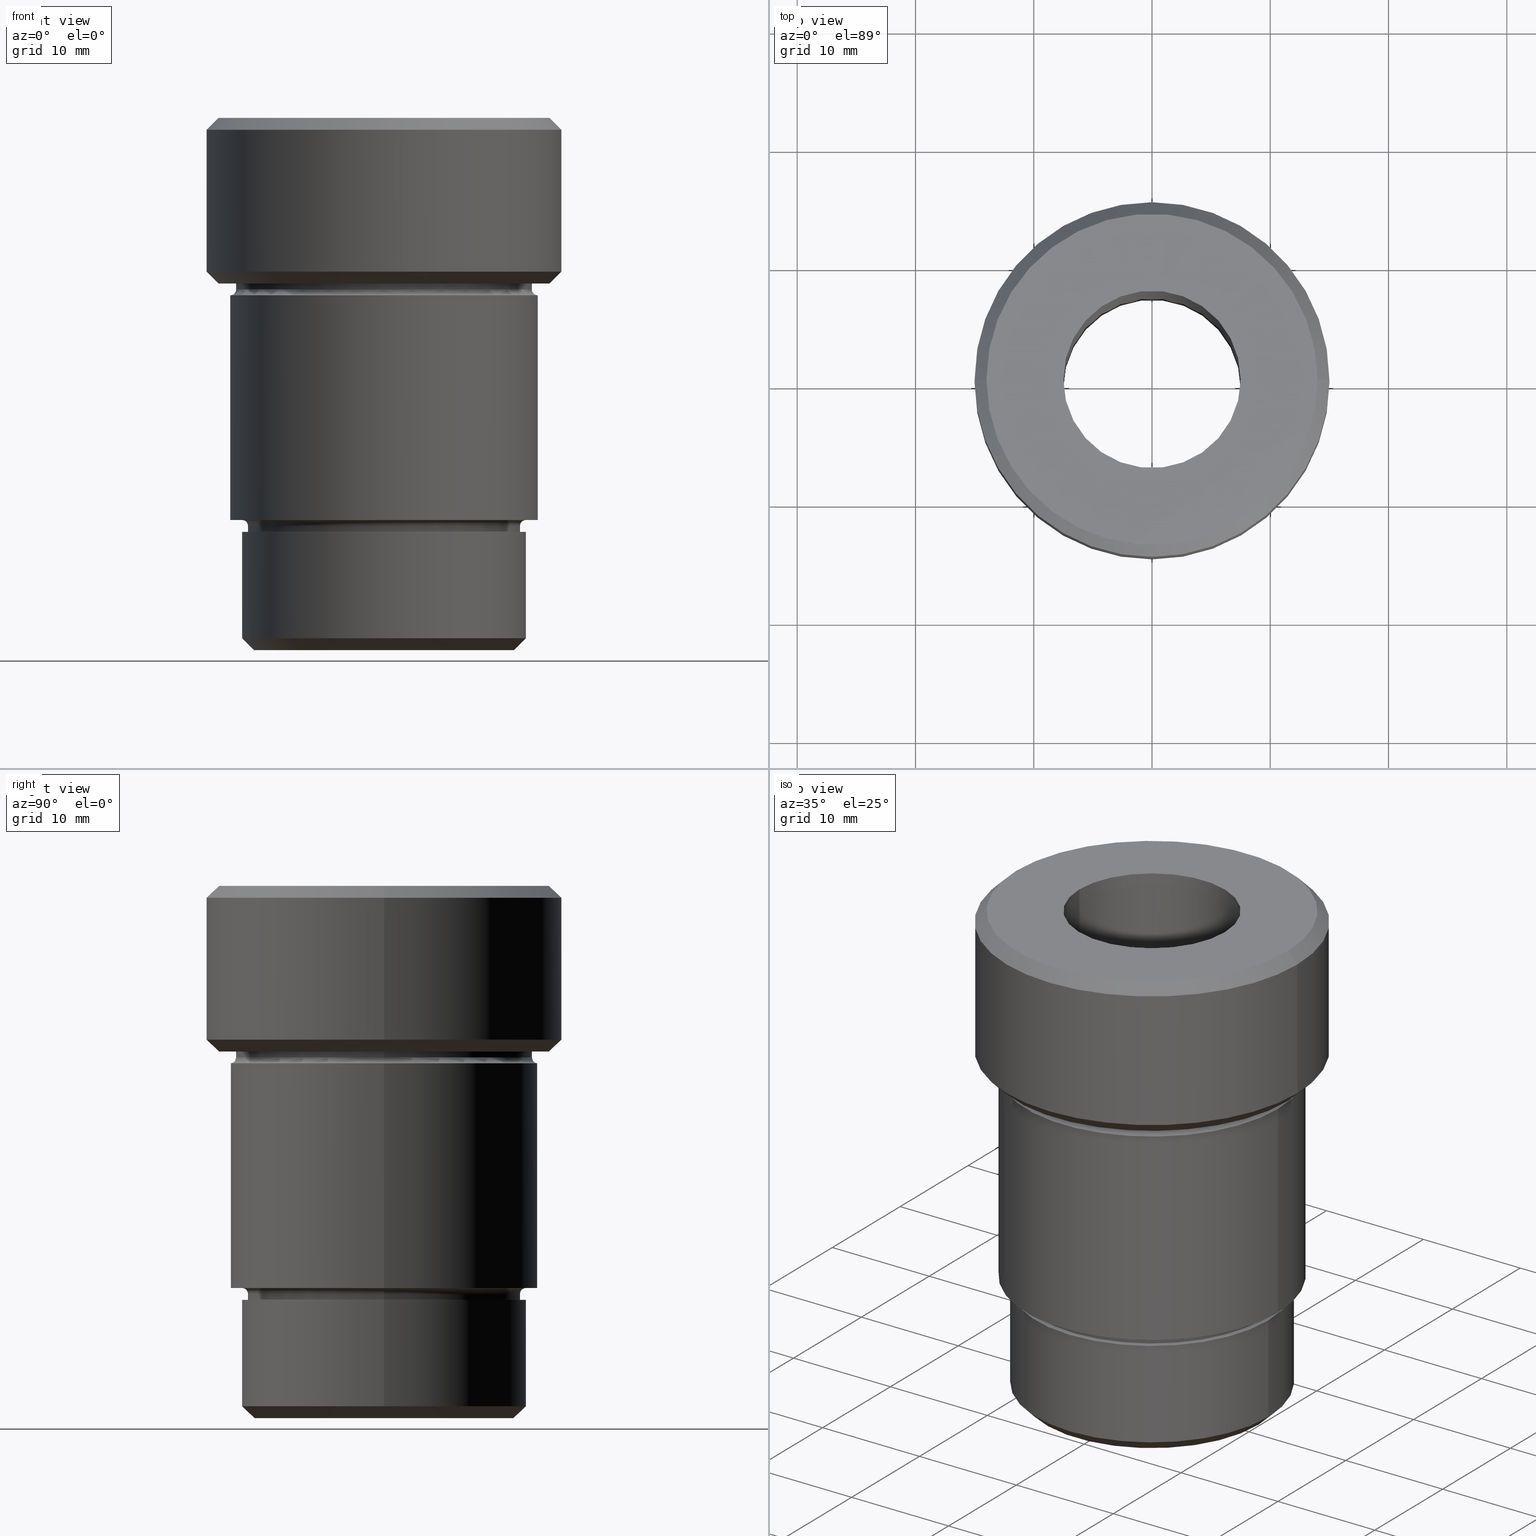
[diagram: canonical four-view strip — front | top / right | iso, engineering-drawing reading convention]
A machine part, canonical four-view strip (front | top / right | iso — engineering-drawing reading convention). The complete STEP part file that produces these views, byte-faithful:
ISO-10303-21;
HEADER;
FILE_DESCRIPTION (( 'STEP AP203' ),
    '1' );
FILE_NAME ('218a.STEP',
    '2024-01-08T12:26:51',
    ( '' ),
    ( '' ),
    'SwSTEP 2.0',
    'SolidWorks 2019',
    '' );
FILE_SCHEMA (( 'CONFIG_CONTROL_DESIGN' ));
ENDSEC;

DATA;
#1 = DIRECTION ( 'NONE',  ( 0.000000000000000000, 0.000000000000000000, -1.000000000000000000 ) ) ;
#2 = EDGE_LOOP ( 'NONE', ( #132, #17 ) ) ;
#3 = DIRECTION ( 'NONE',  ( 1.000000000000000000, 0.000000000000000000, 0.000000000000000000 ) ) ;
#4 = ORIENTED_EDGE ( 'NONE', *, *, #757, .T. ) ;
#5 = DIRECTION ( 'NONE',  ( -0.000000000000000000, -0.000000000000000000, 1.000000000000000000 ) ) ;
#6 = DIRECTION ( 'NONE',  ( -1.000000000000000000, 0.000000000000000000, -0.000000000000000000 ) ) ;
#7 = VERTEX_POINT ( 'NONE', #175 ) ;
#8 = VECTOR ( 'NONE', #476, 999.9999999999998863 ) ;
#9 = AXIS2_PLACEMENT_3D ( 'NONE', #474, #177, #114 ) ;
#10 = DIRECTION ( 'NONE',  ( -0.000000000000000000, -0.000000000000000000, 1.000000000000000000 ) ) ;
#11 = EDGE_LOOP ( 'NONE', ( #198, #740, #411, #762 ) ) ;
#12 = EDGE_CURVE ( 'NONE', #225, #246, #251, .T. ) ;
#13 = DIRECTION ( 'NONE',  ( -0.000000000000000000, -0.000000000000000000, 1.000000000000000000 ) ) ;
#14 = CC_DESIGN_PERSON_AND_ORGANIZATION_ASSIGNMENT ( #457, #38, ( #397 ) ) ;
#15 = DIRECTION ( 'NONE',  ( -0.000000000000000000, -0.000000000000000000, 1.000000000000000000 ) ) ;
#16 = EDGE_LOOP ( 'NONE', ( #212, #266, #244, #364 ) ) ;
#17 = ORIENTED_EDGE ( 'NONE', *, *, #789, .T. ) ;
#18 = VERTEX_POINT ( 'NONE', #583 ) ;
#19 = CARTESIAN_POINT ( 'NONE',  ( -12.00000000000000000, 1.469576158976823947E-15, -44.00000000000000711 ) ) ;
#20 = AXIS2_PLACEMENT_3D ( 'NONE', #78, #513, #751 ) ;
#21 = AXIS2_PLACEMENT_3D ( 'NONE', #176, #586, #405 ) ;
#22 = SHAPE_DEFINITION_REPRESENTATION ( #628, #191 ) ;
#23 = EDGE_CURVE ( 'NONE', #246, #225, #57, .T. ) ;
#24 = AXIS2_PLACEMENT_3D ( 'NONE', #360, #233, #788 ) ;
#25 = DIRECTION ( 'NONE',  ( -0.000000000000000000, -0.000000000000000000, 1.000000000000000000 ) ) ;
#26 = PLANE ( 'NONE',  #315 ) ;
#27 = AXIS2_PLACEMENT_3D ( 'NONE', #655, #168, #707 ) ;
#28 = ORIENTED_EDGE ( 'NONE', *, *, #12, .F. ) ;
#29 = PERSON_AND_ORGANIZATION ( #646, #702 ) ;
#30 = APPLICATION_CONTEXT ( 'configuration controlled 3d designs of mechanical parts and assemblies' ) ;
#31 = DIRECTION ( 'NONE',  ( -1.000000000000000000, 0.000000000000000000, -0.000000000000000000 ) ) ;
#32 = CIRCLE ( 'NONE', #539, 13.99999999999999822 ) ;
#33 = PERSON_AND_ORGANIZATION ( #646, #702 ) ;
#34 = CARTESIAN_POINT ( 'NONE',  ( 0.000000000000000000, 0.000000000000000000, -14.49999999999999822 ) ) ;
#35 = ORIENTED_EDGE ( 'NONE', *, *, #107, .T. ) ;
#36 = CC_DESIGN_SECURITY_CLASSIFICATION ( #607, ( #623 ) ) ;
#37 = ADVANCED_FACE ( 'NONE', ( #644, #162 ), #392, .T. ) ;
#38 = PERSON_AND_ORGANIZATION_ROLE ( 'creator' ) ;
#39 = EDGE_CURVE ( 'NONE', #562, #170, #419, .T. ) ;
#40 = CARTESIAN_POINT ( 'NONE',  ( 0.000000000000000000, 0.000000000000000000, -44.00000000000000711 ) ) ;
#41 = DIRECTION ( 'NONE',  ( -1.000000000000000000, 0.000000000000000000, 0.000000000000000000 ) ) ;
#42 = ORIENTED_EDGE ( 'NONE', *, *, #308, .F. ) ;
#43 = LINE ( 'NONE', #286, #166 ) ;
#44 = CIRCLE ( 'NONE', #493, 12.50000000000000000 ) ;
#45 = CARTESIAN_POINT ( 'NONE',  ( 0.000000000000000000, 0.000000000000000000, 0.000000000000000000 ) ) ;
#46 = EDGE_CURVE ( 'NONE', #566, #102, #343, .T. ) ;
#47 = LINE ( 'NONE', #409, #727 ) ;
#48 = APPROVAL_PERSON_ORGANIZATION ( #29, #485, #147 ) ;
#49 = LINE ( 'NONE', #645, #385 ) ;
#50 = DIRECTION ( 'NONE',  ( 0.000000000000000000, 0.000000000000000000, -1.000000000000000000 ) ) ;
#51 = DIRECTION ( 'NONE',  ( -0.000000000000000000, -0.000000000000000000, 1.000000000000000000 ) ) ;
#52 = DIRECTION ( 'NONE',  ( 1.000000000000000000, 0.000000000000000000, 0.000000000000000000 ) ) ;
#53 = EDGE_CURVE ( 'NONE', #766, #548, #242, .T. ) ;
#54 = CARTESIAN_POINT ( 'NONE',  ( 0.000000000000000000, 0.000000000000000000, -44.00000000000000711 ) ) ;
#55 = AXIS2_PLACEMENT_3D ( 'NONE', #311, #1, #6 ) ;
#56 = DIRECTION ( 'NONE',  ( 1.000000000000000000, 0.000000000000000000, 0.000000000000000000 ) ) ;
#57 = CIRCLE ( 'NONE', #602, 13.99999999999999112 ) ;
#58 = VECTOR ( 'NONE', #10, 1000.000000000000000 ) ;
#59 = DIRECTION ( 'NONE',  ( 1.000000000000000000, 0.000000000000000000, 0.000000000000000000 ) ) ;
#60 = FACE_OUTER_BOUND ( 'NONE', #666, .T. ) ;
#61 = CARTESIAN_POINT ( 'NONE',  ( 0.000000000000000000, 0.000000000000000000, -34.50000000000000000 ) ) ;
#62 = CYLINDRICAL_SURFACE ( 'NONE', #670, 11.50000000000000355 ) ;
#63 = DIRECTION ( 'NONE',  ( -0.000000000000000000, -0.000000000000000000, 1.000000000000000000 ) ) ;
#64 = VERTEX_POINT ( 'NONE', #432 ) ;
#65 = DIRECTION ( 'NONE',  ( -1.000000000000000000, 0.000000000000000000, 0.000000000000000000 ) ) ;
#66 = DIRECTION ( 'NONE',  ( 1.000000000000000000, 0.000000000000000000, 0.000000000000000000 ) ) ;
#67 = CIRCLE ( 'NONE', #293, 0.5000000000000004441 ) ;
#68 = VERTEX_POINT ( 'NONE', #571 ) ;
#69 = ADVANCED_FACE ( 'NONE', ( #263 ), #510, .T. ) ;
#70 = VERTEX_POINT ( 'NONE', #146 ) ;
#71 = DIRECTION ( 'NONE',  ( -1.000000000000000000, 0.000000000000000000, 0.000000000000000000 ) ) ;
#72 = DIRECTION ( 'NONE',  ( -0.000000000000000000, -0.000000000000000000, 1.000000000000000000 ) ) ;
#73 = EDGE_LOOP ( 'NONE', ( #371, #724, #96, #551 ) ) ;
#74 = ORIENTED_EDGE ( 'NONE', *, *, #274, .F. ) ;
#75 = CIRCLE ( 'NONE', #109, 11.50000000000000178 ) ;
#76 = ORIENTED_EDGE ( 'NONE', *, *, #289, .T. ) ;
#77 = ADVANCED_FACE ( 'NONE', ( #440, #327 ), #743, .T. ) ;
#78 = CARTESIAN_POINT ( 'NONE',  ( 0.000000000000000000, 0.000000000000000000, -45.00000000000000000 ) ) ;
#79 = PERSON_AND_ORGANIZATION_ROLE ( 'classification_officer' ) ;
#80 = CIRCLE ( 'NONE', #449, 0.5000000000000004441 ) ;
#81 = AXIS2_PLACEMENT_3D ( 'NONE', #310, #552, #65 ) ;
#82 = CARTESIAN_POINT ( 'NONE',  ( 14.99999999999999822, 0.000000000000000000, -13.00000000000001066 ) ) ;
#83 = DATE_AND_TIME ( #462, #641 ) ;
#84 = ADVANCED_FACE ( 'NONE', ( #379 ), #748, .F. ) ;
#85 = DIRECTION ( 'NONE',  ( 1.000000000000000000, 0.000000000000000000, 0.000000000000000000 ) ) ;
#86 = CIRCLE ( 'NONE', #258, 12.00000000000000178 ) ;
#87 = APPROVAL_STATUS ( 'not_yet_approved' ) ;
#88 = CARTESIAN_POINT ( 'NONE',  ( 0.000000000000000000, 0.000000000000000000, -14.00000000000000000 ) ) ;
#89 = COORDINATED_UNIVERSAL_TIME_OFFSET ( 1, 0, .AHEAD. ) ;
#90 = CARTESIAN_POINT ( 'NONE',  ( 0.000000000000000000, 0.000000000000000000, 0.000000000000000000 ) ) ;
#91 = FACE_OUTER_BOUND ( 'NONE', #465, .T. ) ;
#92 = EDGE_CURVE ( 'NONE', #225, #260, #444, .T. ) ;
#93 = EDGE_LOOP ( 'NONE', ( #126, #675, #497, #309 ) ) ;
#94 = AXIS2_PLACEMENT_3D ( 'NONE', #685, #461, #211 ) ;
#95 = ORIENTED_EDGE ( 'NONE', *, *, #395, .F. ) ;
#96 = ORIENTED_EDGE ( 'NONE', *, *, #723, .T. ) ;
#97 = DIRECTION ( 'NONE',  ( -1.000000000000000000, -1.224646799147353454E-16, 0.000000000000000000 ) ) ;
#98 = ORIENTED_EDGE ( 'NONE', *, *, #381, .F. ) ;
#99 = CIRCLE ( 'NONE', #325, 14.99999999999999822 ) ;
#100 = FACE_BOUND ( 'NONE', #671, .T. ) ;
#101 = DIRECTION ( 'NONE',  ( 1.000000000000000000, 0.000000000000000000, 0.000000000000000000 ) ) ;
#102 = VERTEX_POINT ( 'NONE', #82 ) ;
#103 = EDGE_CURVE ( 'NONE', #68, #562, #323, .T. ) ;
#104 = CARTESIAN_POINT ( 'NONE',  ( 12.00000000000000000, 0.000000000000000000, 0.000000000000000000 ) ) ;
#105 = TOROIDAL_SURFACE ( 'NONE', #214, 13.00000000000000178, 0.5000000000000000000 ) ;
#106 = CIRCLE ( 'NONE', #9, 13.00000000000000355 ) ;
#107 = EDGE_CURVE ( 'NONE', #507, #447, #121, .T. ) ;
#108 = DIRECTION ( 'NONE',  ( 0.000000000000000000, 0.000000000000000000, -1.000000000000000000 ) ) ;
#109 = AXIS2_PLACEMENT_3D ( 'NONE', #297, #533, #657 ) ;
#110 = DIRECTION ( 'NONE',  ( 0.000000000000000000, 0.000000000000000000, -1.000000000000000000 ) ) ;
#111 = CARTESIAN_POINT ( 'NONE',  ( 0.000000000000000000, 0.000000000000000000, -13.00000000000001066 ) ) ;
#112 = CONICAL_SURFACE ( 'NONE', #768, 14.99999999999999822, 0.7853981633974526089 ) ;
#113 = AXIS2_PLACEMENT_3D ( 'NONE', #45, #782, #178 ) ;
#114 = DIRECTION ( 'NONE',  ( 1.000000000000000000, 0.000000000000000000, 0.000000000000000000 ) ) ;
#115 = CARTESIAN_POINT ( 'NONE',  ( 0.000000000000000000, 0.000000000000000000, -15.00000000000000000 ) ) ;
#116 = CARTESIAN_POINT ( 'NONE',  ( 0.000000000000000000, 0.000000000000000000, 0.000000000000000000 ) ) ;
#117 = ORIENTED_EDGE ( 'NONE', *, *, #523, .F. ) ;
#118 = CARTESIAN_POINT ( 'NONE',  ( 0.000000000000000000, 0.000000000000000000, -45.00000000000000000 ) ) ;
#119 = CC_DESIGN_PERSON_AND_ORGANIZATION_ASSIGNMENT ( #213, #284, ( #623 ) ) ;
#120 = LINE ( 'NONE', #232, #279 ) ;
#121 = CIRCLE ( 'NONE', #569, 11.50000000000000355 ) ;
#122 = CIRCLE ( 'NONE', #784, 11.50000000000000355 ) ;
#123 = VERTEX_POINT ( 'NONE', #770 ) ;
#124 = DIRECTION ( 'NONE',  ( 0.000000000000000000, 0.000000000000000000, -1.000000000000000000 ) ) ;
#125 = EDGE_LOOP ( 'NONE', ( #98, #354, #76, #35 ) ) ;
#126 = ORIENTED_EDGE ( 'NONE', *, *, #256, .T. ) ;
#127 = CARTESIAN_POINT ( 'NONE',  ( 12.00000000000000178, 0.000000000000000000, -35.00000000000000000 ) ) ;
#128 = CARTESIAN_POINT ( 'NONE',  ( 0.000000000000000000, 0.000000000000000000, 0.000000000000000000 ) ) ;
#129 = LOCAL_TIME ( 13, 26, 51.00000000000000000, #89 ) ;
#130 = ORIENTED_EDGE ( 'NONE', *, *, #289, .F. ) ;
#131 = DIRECTION ( 'NONE',  ( 0.000000000000000000, 0.000000000000000000, 1.000000000000000000 ) ) ;
#132 = ORIENTED_EDGE ( 'NONE', *, *, #193, .T. ) ;
#133 = AXIS2_PLACEMENT_3D ( 'NONE', #722, #131, #3 ) ;
#134 = ORIENTED_EDGE ( 'NONE', *, *, #324, .F. ) ;
#135 = LINE ( 'NONE', #352, #696 ) ;
#136 = DIRECTION ( 'NONE',  ( 1.000000000000000000, 0.000000000000000000, 0.000000000000000000 ) ) ;
#137 = CIRCLE ( 'NONE', #515, 0.5000000000000004441 ) ;
#138 = ADVANCED_FACE ( 'NONE', ( #453, #100 ), #157, .T. ) ;
#139 = AXIS2_PLACEMENT_3D ( 'NONE', #705, #614, #59 ) ;
#140 = ORIENTED_EDGE ( 'NONE', *, *, #236, .T. ) ;
#141 = FACE_OUTER_BOUND ( 'NONE', #556, .T. ) ;
#142 = CIRCLE ( 'NONE', #626, 12.50000000000000000 ) ;
#143 = DIRECTION ( 'NONE',  ( 1.000000000000000000, 0.000000000000000000, 0.000000000000000000 ) ) ;
#144 = AXIS2_PLACEMENT_3D ( 'NONE', #61, #553, #734 ) ;
#145 = ADVANCED_FACE ( 'NONE', ( #331 ), #729, .T. ) ;
#146 = CARTESIAN_POINT ( 'NONE',  ( -13.99999999999999822, 1.775737858763662015E-15, -14.00000000000000000 ) ) ;
#147 = APPROVAL_ROLE ( '' ) ;
#148 = ORIENTED_EDGE ( 'NONE', *, *, #789, .F. ) ;
#149 = ORIENTED_EDGE ( 'NONE', *, *, #632, .T. ) ;
#150 = CC_DESIGN_PERSON_AND_ORGANIZATION_ASSIGNMENT ( #690, #390, ( #559 ) ) ;
#151 = DIRECTION ( 'NONE',  ( 0.000000000000000000, 0.000000000000000000, -1.000000000000000000 ) ) ;
#152 = AXIS2_PLACEMENT_3D ( 'NONE', #156, #564, #85 ) ;
#153 = ORIENTED_EDGE ( 'NONE', *, *, #218, .T. ) ;
#154 = CIRCLE ( 'NONE', #755, 0.5000000000000004441 ) ;
#155 = CALENDAR_DATE ( 2024, 8, 1 ) ;
#156 = CARTESIAN_POINT ( 'NONE',  ( 0.000000000000000000, 0.000000000000000000, -1.000000000000004441 ) ) ;
#157 = PLANE ( 'NONE',  #228 ) ;
#158 = PERSON_AND_ORGANIZATION ( #646, #702 ) ;
#159 = EDGE_CURVE ( 'NONE', #246, #736, #362, .T. ) ;
#160 = DIRECTION ( 'NONE',  ( 0.000000000000000000, 0.000000000000000000, -1.000000000000000000 ) ) ;
#161 = ORIENTED_EDGE ( 'NONE', *, *, #181, .F. ) ;
#162 = FACE_OUTER_BOUND ( 'NONE', #544, .T. ) ;
#163 = ORIENTED_EDGE ( 'NONE', *, *, #269, .T. ) ;
#164 = DIRECTION ( 'NONE',  ( 1.000000000000000000, 0.000000000000000000, 0.000000000000000000 ) ) ;
#165 = EDGE_LOOP ( 'NONE', ( #613, #192, #255, #753 ) ) ;
#166 = VECTOR ( 'NONE', #290, 1000.000000000000000 ) ;
#167 = AXIS2_PLACEMENT_3D ( 'NONE', #111, #786, #52 ) ;
#168 = DIRECTION ( 'NONE',  ( -0.000000000000000000, -0.000000000000000000, 1.000000000000000000 ) ) ;
#169 = EDGE_CURVE ( 'NONE', #447, #185, #80, .T. ) ;
#170 = VERTEX_POINT ( 'NONE', #303 ) ;
#171 = CARTESIAN_POINT ( 'NONE',  ( -12.50000000000000000, 1.530808498934191521E-15, -14.49999999999999822 ) ) ;
#172 = ADVANCED_FACE ( 'NONE', ( #546 ), #105, .F. ) ;
#173 = CYLINDRICAL_SURFACE ( 'NONE', #24, 12.00000000000000000 ) ;
#174 = CIRCLE ( 'NONE', #604, 12.50000000000000000 ) ;
#175 = CARTESIAN_POINT ( 'NONE',  ( -11.50000000000000178, 1.408343819019456373E-15, -35.00000000000000000 ) ) ;
#176 = CARTESIAN_POINT ( 'NONE',  ( 0.000000000000000000, 0.000000000000000000, -35.00000000000000000 ) ) ;
#177 = DIRECTION ( 'NONE',  ( -0.000000000000000000, -0.000000000000000000, 1.000000000000000000 ) ) ;
#178 = DIRECTION ( 'NONE',  ( 1.000000000000000000, 0.000000000000000000, 0.000000000000000000 ) ) ;
#179 = EDGE_CURVE ( 'NONE', #70, #329, #648, .T. ) ;
#180 = DIRECTION ( 'NONE',  ( 1.000000000000000000, 0.000000000000000000, 0.000000000000000000 ) ) ;
#181 = EDGE_CURVE ( 'NONE', #292, #123, #120, .T. ) ;
#182 = CARTESIAN_POINT ( 'NONE',  ( 13.99999999999999112, 1.775737858763661226E-15, 0.000000000000000000 ) ) ;
#183 = ORIENTED_EDGE ( 'NONE', *, *, #541, .T. ) ;
#184 = CYLINDRICAL_SURFACE ( 'NONE', #113, 12.00000000000000000 ) ;
#185 = VERTEX_POINT ( 'NONE', #368 ) ;
#186 = EDGE_LOOP ( 'NONE', ( #370, #706, #436, #117 ) ) ;
#187 = DIRECTION ( 'NONE',  ( 0.000000000000000000, 0.000000000000000000, -1.000000000000000000 ) ) ;
#188 = AXIS2_PLACEMENT_3D ( 'NONE', #759, #391, #695 ) ;
#189 = ORIENTED_EDGE ( 'NONE', *, *, #46, .T. ) ;
#190 = FACE_OUTER_BOUND ( 'NONE', #337, .T. ) ;
#191 = ADVANCED_BREP_SHAPE_REPRESENTATION ( '218a', ( #682, #295 ), #749 ) ;
#192 = ORIENTED_EDGE ( 'NONE', *, *, #433, .T. ) ;
#193 = EDGE_CURVE ( 'NONE', #288, #548, #558, .T. ) ;
#194 = ORIENTED_EDGE ( 'NONE', *, *, #308, .T. ) ;
#195 = CARTESIAN_POINT ( 'NONE',  ( -12.00000000000000355, 0.000000000000000000, -34.50000000000000000 ) ) ;
#196 = DIRECTION ( 'NONE',  ( -1.000000000000000000, 0.000000000000000000, 0.000000000000000000 ) ) ;
#197 = CC_DESIGN_APPROVAL ( #599, ( #397 ) ) ;
#198 = ORIENTED_EDGE ( 'NONE', *, *, #23, .F. ) ;
#199 = ORIENTED_EDGE ( 'NONE', *, *, #458, .T. ) ;
#200 = CARTESIAN_POINT ( 'NONE',  ( 0.000000000000000000, 13.00000000000000355, -34.00000000000000000 ) ) ;
#201 = TOROIDAL_SURFACE ( 'NONE', #401, 12.00000000000000355, 0.5000000000000000000 ) ;
#202 = ORIENTED_EDGE ( 'NONE', *, *, #435, .T. ) ;
#203 = EDGE_LOOP ( 'NONE', ( #526, #621 ) ) ;
#204 = ORIENTED_EDGE ( 'NONE', *, *, #458, .F. ) ;
#205 = ADVANCED_FACE ( 'NONE', ( #659 ), #253, .T. ) ;
#206 = CONICAL_SURFACE ( 'NONE', #167, 14.99999999999999822, 0.7853981633974526089 ) ;
#207 = ORIENTED_EDGE ( 'NONE', *, *, #612, .F. ) ;
#208 = LINE ( 'NONE', #509, #424 ) ;
#209 = APPROVAL ( #87, 'NEUR�EN�' ) ;
#210 = CALENDAR_DATE ( 2024, 8, 1 ) ;
#211 = DIRECTION ( 'NONE',  ( 1.000000000000000000, 0.000000000000000000, 0.000000000000000000 ) ) ;
#212 = ORIENTED_EDGE ( 'NONE', *, *, #567, .F. ) ;
#213 = PERSON_AND_ORGANIZATION ( #646, #702 ) ;
#214 = AXIS2_PLACEMENT_3D ( 'NONE', #494, #488, #793 ) ;
#215 = FACE_BOUND ( 'NONE', #624, .T. ) ;
#216 = CIRCLE ( 'NONE', #81, 12.00000000000000355 ) ;
#217 = EDGE_CURVE ( 'NONE', #292, #750, #106, .T. ) ;
#218 = EDGE_CURVE ( 'NONE', #750, #674, #536, .T. ) ;
#219 = PLANE ( 'NONE',  #687 ) ;
#220 = EDGE_LOOP ( 'NONE', ( #249, #285 ) ) ;
#221 = COORDINATED_UNIVERSAL_TIME_OFFSET ( 1, 0, .AHEAD. ) ;
#222 = ORIENTED_EDGE ( 'NONE', *, *, #39, .T. ) ;
#223 = CARTESIAN_POINT ( 'NONE',  ( 13.99999999999999822, 0.000000000000000000, -14.00000000000000000 ) ) ;
#224 = DATE_AND_TIME ( #692, #441 ) ;
#225 = VERTEX_POINT ( 'NONE', #426 ) ;
#226 = EDGE_CURVE ( 'NONE', #774, #766, #270, .T. ) ;
#227 = CYLINDRICAL_SURFACE ( 'NONE', #576, 12.50000000000000000 ) ;
#228 = AXIS2_PLACEMENT_3D ( 'NONE', #287, #701, #590 ) ;
#229 = AXIS2_PLACEMENT_3D ( 'NONE', #318, #160, #71 ) ;
#230 = CARTESIAN_POINT ( 'NONE',  ( 7.500000000000000000, 0.000000000000000000, 0.000000000000000000 ) ) ;
#231 = CARTESIAN_POINT ( 'NONE',  ( 11.50000000000000178, 0.000000000000000000, -35.00000000000000000 ) ) ;
#232 = CARTESIAN_POINT ( 'NONE',  ( -13.00000000000000178, 1.592040838891559293E-15, 0.000000000000000000 ) ) ;
#233 = DIRECTION ( 'NONE',  ( -0.000000000000000000, -0.000000000000000000, 1.000000000000000000 ) ) ;
#234 = DIRECTION ( 'NONE',  ( -0.000000000000000000, -0.000000000000000000, 1.000000000000000000 ) ) ;
#235 = CARTESIAN_POINT ( 'NONE',  ( -14.99999999999999822, 1.836970198721029589E-15, -1.000000000000004441 ) ) ;
#236 = EDGE_CURVE ( 'NONE', #463, #766, #245, .T. ) ;
#237 = CONICAL_SURFACE ( 'NONE', #649, 13.99999999999999112, 0.7853981633974491672 ) ;
#238 = CC_DESIGN_DATE_AND_TIME_ASSIGNMENT ( #83, #572, ( #607 ) ) ;
#239 = CARTESIAN_POINT ( 'NONE',  ( -12.00000000000000355, 1.469576158976824342E-15, -35.00000000000000000 ) ) ;
#240 = TOROIDAL_SURFACE ( 'NONE', #144, 12.00000000000000355, 0.5000000000000000000 ) ;
#241 = DIRECTION ( 'NONE',  ( -1.000000000000000000, 0.000000000000000000, 0.000000000000000000 ) ) ;
#242 = LINE ( 'NONE', #735, #769 ) ;
#243 = DIRECTION ( 'NONE',  ( 1.000000000000000000, 0.000000000000000000, 0.000000000000000000 ) ) ;
#244 = ORIENTED_EDGE ( 'NONE', *, *, #640, .T. ) ;
#245 = LINE ( 'NONE', #652, #592 ) ;
#246 = VERTEX_POINT ( 'NONE', #182 ) ;
#247 = DIRECTION ( 'NONE',  ( -1.000000000000000000, 0.000000000000000000, 0.000000000000000000 ) ) ;
#248 = ORIENTED_EDGE ( 'NONE', *, *, #532, .T. ) ;
#249 = ORIENTED_EDGE ( 'NONE', *, *, #654, .T. ) ;
#250 = DIRECTION ( 'NONE',  ( -1.000000000000000000, 0.000000000000000000, 0.000000000000000000 ) ) ;
#251 = CIRCLE ( 'NONE', #783, 13.99999999999999112 ) ;
#252 = CARTESIAN_POINT ( 'NONE',  ( 0.000000000000000000, 0.000000000000000000, -13.00000000000001066 ) ) ;
#253 = CONICAL_SURFACE ( 'NONE', #450, 13.99999999999999112, 0.7853981633974491672 ) ;
#254 = ORIENTED_EDGE ( 'NONE', *, *, #357, .F. ) ;
#255 = ORIENTED_EDGE ( 'NONE', *, *, #757, .F. ) ;
#256 = EDGE_CURVE ( 'NONE', #750, #292, #304, .T. ) ;
#257 = CARTESIAN_POINT ( 'NONE',  ( -14.99999999999999822, 1.836970198721029589E-15, -13.00000000000001066 ) ) ;
#258 = AXIS2_PLACEMENT_3D ( 'NONE', #442, #683, #66 ) ;
#259 = ORIENTED_EDGE ( 'NONE', *, *, #299, .F. ) ;
#260 = VERTEX_POINT ( 'NONE', #235 ) ;
#261 = FACE_OUTER_BOUND ( 'NONE', #125, .T. ) ;
#262 = DIRECTION ( 'NONE',  ( 1.000000000000000000, 0.000000000000000000, 0.000000000000000000 ) ) ;
#263 = FACE_OUTER_BOUND ( 'NONE', #501, .T. ) ;
#264 = DESIGN_CONTEXT ( 'detailed design', #30, 'design' ) ;
#265 = ORIENTED_EDGE ( 'NONE', *, *, #612, .T. ) ;
#266 = ORIENTED_EDGE ( 'NONE', *, *, #532, .F. ) ;
#267 = FACE_OUTER_BOUND ( 'NONE', #415, .T. ) ;
#268 = DIRECTION ( 'NONE',  ( 0.000000000000000000, -0.000000000000000000, 1.000000000000000000 ) ) ;
#269 = EDGE_CURVE ( 'NONE', #447, #507, #122, .T. ) ;
#270 = CIRCLE ( 'NONE', #570, 12.00000000000000000 ) ;
#271 = CARTESIAN_POINT ( 'NONE',  ( 0.000000000000000000, 0.000000000000000000, 0.000000000000000000 ) ) ;
#272 = AXIS2_PLACEMENT_3D ( 'NONE', #319, #72, #262 ) ;
#273 = DIRECTION ( 'NONE',  ( -1.000000000000000000, 0.000000000000000000, -0.000000000000000000 ) ) ;
#274 = EDGE_CURVE ( 'NONE', #566, #260, #668, .T. ) ;
#275 = ORIENTED_EDGE ( 'NONE', *, *, #226, .F. ) ;
#276 = DATE_AND_TIME ( #328, #377 ) ;
#277 = AXIS2_PLACEMENT_3D ( 'NONE', #712, #412, #767 ) ;
#278 = DIRECTION ( 'NONE',  ( 0.000000000000000000, 0.000000000000000000, -1.000000000000000000 ) ) ;
#279 = VECTOR ( 'NONE', #481, 1000.000000000000000 ) ;
#280 = PERSON_AND_ORGANIZATION ( #646, #702 ) ;
#281 = AXIS2_PLACEMENT_3D ( 'NONE', #115, #773, #596 ) ;
#282 = CYLINDRICAL_SURFACE ( 'NONE', #94, 11.50000000000000355 ) ;
#283 = ADVANCED_FACE ( 'NONE', ( #60 ), #656, .F. ) ;
#284 = PERSON_AND_ORGANIZATION_ROLE ( 'creator' ) ;
#285 = ORIENTED_EDGE ( 'NONE', *, *, #680, .T. ) ;
#286 = CARTESIAN_POINT ( 'NONE',  ( -12.50000000000000000, 1.530808498934191521E-15, 0.000000000000000000 ) ) ;
#287 = CARTESIAN_POINT ( 'NONE',  ( 0.000000000000000000, 11.50000000000000178, -35.00000000000000000 ) ) ;
#288 = VERTEX_POINT ( 'NONE', #127 ) ;
#289 = EDGE_CURVE ( 'NONE', #486, #507, #135, .T. ) ;
#290 = DIRECTION ( 'NONE',  ( -0.000000000000000000, -0.000000000000000000, 1.000000000000000000 ) ) ;
#291 = AXIS2_PLACEMENT_3D ( 'NONE', #271, #268, #143 ) ;
#292 = VERTEX_POINT ( 'NONE', #616 ) ;
#293 = AXIS2_PLACEMENT_3D ( 'NONE', #629, #389, #97 ) ;
#294 = CARTESIAN_POINT ( 'NONE',  ( 0.000000000000000000, 0.000000000000000000, -45.00000000000000000 ) ) ;
#295 = AXIS2_PLACEMENT_3D ( 'NONE', #128, #363, #669 ) ;
#296 = CC_DESIGN_APPROVAL ( #209, ( #623 ) ) ;
#297 = CARTESIAN_POINT ( 'NONE',  ( 0.000000000000000000, 0.000000000000000000, -35.00000000000000000 ) ) ;
#298 = DIRECTION ( 'NONE',  ( 1.000000000000000000, 0.000000000000000000, 0.000000000000000000 ) ) ;
#299 = EDGE_CURVE ( 'NONE', #64, #185, #216, .T. ) ;
#300 = DIRECTION ( 'NONE',  ( -0.000000000000000000, -0.000000000000000000, 1.000000000000000000 ) ) ;
#301 = LINE ( 'NONE', #477, #543 ) ;
#302 = DIRECTION ( 'NONE',  ( -1.000000000000000000, 1.224646799147353454E-16, 0.000000000000000000 ) ) ;
#303 = CARTESIAN_POINT ( 'NONE',  ( -7.500000000000000000, 9.184850993605145972E-16, 0.000000000000000000 ) ) ;
#304 = CIRCLE ( 'NONE', #771, 13.00000000000000355 ) ;
#305 = FACE_OUTER_BOUND ( 'NONE', #186, .T. ) ;
#306 = CIRCLE ( 'NONE', #281, 13.00000000000000178 ) ;
#307 = CARTESIAN_POINT ( 'NONE',  ( 0.000000000000000000, 0.000000000000000000, -45.00000000000000000 ) ) ;
#308 = EDGE_CURVE ( 'NONE', #736, #260, #396, .T. ) ;
#309 = ORIENTED_EDGE ( 'NONE', *, *, #218, .F. ) ;
#310 = CARTESIAN_POINT ( 'NONE',  ( 0.000000000000000000, 0.000000000000000000, -34.00000000000000000 ) ) ;
#311 = CARTESIAN_POINT ( 'NONE',  ( 0.000000000000000000, 12.00000000000000000, -45.00000000000000000 ) ) ;
#312 = ORIENTED_EDGE ( 'NONE', *, *, #92, .T. ) ;
#313 = ORIENTED_EDGE ( 'NONE', *, *, #324, .T. ) ;
#314 = DIRECTION ( 'NONE',  ( 1.000000000000000000, 0.000000000000000000, 0.000000000000000000 ) ) ;
#315 = AXIS2_PLACEMENT_3D ( 'NONE', #200, #634, #273 ) ;
#316 = ORIENTED_EDGE ( 'NONE', *, *, #776, .T. ) ;
#317 = ORIENTED_EDGE ( 'NONE', *, *, #395, .T. ) ;
#318 = CARTESIAN_POINT ( 'NONE',  ( 0.000000000000000000, 0.000000000000000000, -45.00000000000000000 ) ) ;
#319 = CARTESIAN_POINT ( 'NONE',  ( 0.000000000000000000, 0.000000000000000000, 0.000000000000000000 ) ) ;
#320 = ORIENTED_EDGE ( 'NONE', *, *, #357, .T. ) ;
#321 = COORDINATED_UNIVERSAL_TIME_OFFSET ( 1, 0, .AHEAD. ) ;
#322 = AXIS2_PLACEMENT_3D ( 'NONE', #330, #452, #691 ) ;
#323 = LINE ( 'NONE', #573, #661 ) ;
#324 = EDGE_CURVE ( 'NONE', #437, #463, #508, .T. ) ;
#325 = AXIS2_PLACEMENT_3D ( 'NONE', #252, #495, #196 ) ;
#326 = DIRECTION ( 'NONE',  ( -1.000000000000000000, 0.000000000000000000, 0.000000000000000000 ) ) ;
#327 = FACE_OUTER_BOUND ( 'NONE', #728, .T. ) ;
#328 = CALENDAR_DATE ( 2024, 8, 1 ) ;
#329 = VERTEX_POINT ( 'NONE', #223 ) ;
#330 = CARTESIAN_POINT ( 'NONE',  ( 0.000000000000000000, 0.000000000000000000, 0.000000000000000000 ) ) ;
#331 = FACE_OUTER_BOUND ( 'NONE', #338, .T. ) ;
#332 = DATE_AND_TIME ( #155, #129 ) ;
#333 = AXIS2_PLACEMENT_3D ( 'NONE', #40, #234, #180 ) ;
#334 = DIRECTION ( 'NONE',  ( 1.000000000000000000, 0.000000000000000000, 0.000000000000000000 ) ) ;
#335 = CLOSED_SHELL ( 'NONE', ( #84, #448, #664, #205, #694, #145, #686, #679, #745, #598, #752, #37, #77, #580, #349, #69, #542, #413, #374, #138, #732, #555, #469, #404, #744, #172, #283 ) ) ;
#336 = EDGE_CURVE ( 'NONE', #260, #736, #373, .T. ) ;
#337 = EDGE_LOOP ( 'NONE', ( #554, #517, #163, #130 ) ) ;
#338 = EDGE_LOOP ( 'NONE', ( #609, #140, #275, #376 ) ) ;
#339 = FACE_OUTER_BOUND ( 'NONE', #73, .T. ) ;
#340 = CC_DESIGN_PERSON_AND_ORGANIZATION_ASSIGNMENT ( #525, #764, ( #623 ) ) ;
#341 = DIRECTION ( 'NONE',  ( -0.000000000000000000, -0.000000000000000000, 1.000000000000000000 ) ) ;
#342 = CARTESIAN_POINT ( 'NONE',  ( 0.000000000000000000, 0.000000000000000000, 0.000000000000000000 ) ) ;
#343 = CIRCLE ( 'NONE', #406, 14.99999999999999822 ) ;
#344 = VECTOR ( 'NONE', #756, 1000.000000000000000 ) ;
#345 = DIRECTION ( 'NONE',  ( 0.000000000000000000, 0.000000000000000000, -1.000000000000000000 ) ) ;
#346 = EDGE_CURVE ( 'NONE', #617, #366, #142, .T. ) ;
#347 = CYLINDRICAL_SURFACE ( 'NONE', #451, 13.00000000000000178 ) ;
#348 = CC_DESIGN_APPROVAL ( #485, ( #607 ) ) ;
#349 = ADVANCED_FACE ( 'NONE', ( #141, #522 ), #219, .T. ) ;
#350 = DIRECTION ( 'NONE',  ( 1.000000000000000000, 0.000000000000000000, 0.000000000000000000 ) ) ;
#351 = DIRECTION ( 'NONE',  ( -0.000000000000000000, -0.000000000000000000, 1.000000000000000000 ) ) ;
#352 = CARTESIAN_POINT ( 'NONE',  ( 11.50000000000000355, 0.000000000000000000, 0.000000000000000000 ) ) ;
#353 = DIRECTION ( 'NONE',  ( -1.000000000000000000, 0.000000000000000000, 0.000000000000000000 ) ) ;
#354 = ORIENTED_EDGE ( 'NONE', *, *, #700, .T. ) ;
#355 = DIRECTION ( 'NONE',  ( 1.000000000000000000, 0.000000000000000000, 0.000000000000000000 ) ) ;
#356 = VECTOR ( 'NONE', #627, 999.9999999999998863 ) ;
#357 = EDGE_CURVE ( 'NONE', #507, #64, #67, .T. ) ;
#358 = CIRCLE ( 'NONE', #21, 11.50000000000000178 ) ;
#359 = CARTESIAN_POINT ( 'NONE',  ( 0.000000000000000000, 0.000000000000000000, -34.50000000000000000 ) ) ;
#360 = CARTESIAN_POINT ( 'NONE',  ( 0.000000000000000000, 0.000000000000000000, 0.000000000000000000 ) ) ;
#361 = FACE_OUTER_BOUND ( 'NONE', #425, .T. ) ;
#362 = LINE ( 'NONE', #414, #8 ) ;
#363 = DIRECTION ( 'NONE',  ( 0.000000000000000000, 0.000000000000000000, 1.000000000000000000 ) ) ;
#364 = ORIENTED_EDGE ( 'NONE', *, *, #625, .T. ) ;
#365 = DIRECTION ( 'NONE',  ( 0.000000000000000000, 0.000000000000000000, -1.000000000000000000 ) ) ;
#366 = VERTEX_POINT ( 'NONE', #560 ) ;
#367 = ORIENTED_EDGE ( 'NONE', *, *, #299, .T. ) ;
#368 = CARTESIAN_POINT ( 'NONE',  ( -12.00000000000000355, 0.000000000000000000, -34.00000000000000000 ) ) ;
#369 = CIRCLE ( 'NONE', #27, 12.00000000000000355 ) ;
#370 = ORIENTED_EDGE ( 'NONE', *, *, #226, .T. ) ;
#371 = ORIENTED_EDGE ( 'NONE', *, *, #433, .F. ) ;
#372 = CARTESIAN_POINT ( 'NONE',  ( 0.000000000000000000, 0.000000000000000000, -44.00000000000000711 ) ) ;
#373 = CIRCLE ( 'NONE', #152, 14.99999999999999822 ) ;
#374 = ADVANCED_FACE ( 'NONE', ( #261 ), #282, .T. ) ;
#375 = ORIENTED_EDGE ( 'NONE', *, *, #346, .T. ) ;
#376 = ORIENTED_EDGE ( 'NONE', *, *, #591, .F. ) ;
#377 = LOCAL_TIME ( 13, 26, 51.00000000000000000, #221 ) ;
#378 = CARTESIAN_POINT ( 'NONE',  ( 13.00000000000000355, 0.000000000000000000, -34.00000000000000000 ) ) ;
#379 = FACE_OUTER_BOUND ( 'NONE', #506, .T. ) ;
#380 = ORIENTED_EDGE ( 'NONE', *, *, #217, .T. ) ;
#381 = EDGE_CURVE ( 'NONE', #7, #447, #394, .T. ) ;
#382 = CARTESIAN_POINT ( 'NONE',  ( -13.99999999999999112, 0.000000000000000000, 0.000000000000000000 ) ) ;
#383 = APPROVAL_STATUS ( 'not_yet_approved' ) ;
#384 = AXIS2_PLACEMENT_3D ( 'NONE', #647, #456, #314 ) ;
#385 = VECTOR ( 'NONE', #341, 1000.000000000000000 ) ;
#386 = CIRCLE ( 'NONE', #713, 10.99999999999999645 ) ;
#387 = FACE_OUTER_BOUND ( 'NONE', #608, .T. ) ;
#388 = APPROVAL_STATUS ( 'not_yet_approved' ) ;
#389 = DIRECTION ( 'NONE',  ( -1.224646799147353207E-16, 1.000000000000000000, 0.000000000000000000 ) ) ;
#390 = PERSON_AND_ORGANIZATION_ROLE ( 'design_owner' ) ;
#391 = DIRECTION ( 'NONE',  ( 0.000000000000000000, 0.000000000000000000, -1.000000000000000000 ) ) ;
#392 = PLANE ( 'NONE',  #55 ) ;
#393 = ORIENTED_EDGE ( 'NONE', *, *, #103, .T. ) ;
#394 = LINE ( 'NONE', #503, #58 ) ;
#395 = EDGE_CURVE ( 'NONE', #170, #562, #663, .T. ) ;
#396 = CIRCLE ( 'NONE', #188, 14.99999999999999822 ) ;
#397 = PRODUCT_DEFINITION ( 'NEZN�M�', '', #623, #264 ) ;
#398 = DIRECTION ( 'NONE',  ( -0.000000000000000000, -0.000000000000000000, 1.000000000000000000 ) ) ;
#399 = LOCAL_TIME ( 13, 26, 51.00000000000000000, #521 ) ;
#400 = FACE_OUTER_BOUND ( 'NONE', #467, .T. ) ;
#401 = AXIS2_PLACEMENT_3D ( 'NONE', #791, #365, #247 ) ;
#402 = DIRECTION ( 'NONE',  ( 1.000000000000000000, 0.000000000000000000, 0.000000000000000000 ) ) ;
#403 = DIRECTION ( 'NONE',  ( -1.000000000000000000, 0.000000000000000000, 0.000000000000000000 ) ) ;
#404 = ADVANCED_FACE ( 'NONE', ( #387 ), #237, .T. ) ;
#405 = DIRECTION ( 'NONE',  ( 1.000000000000000000, 0.000000000000000000, 0.000000000000000000 ) ) ;
#406 = AXIS2_PLACEMENT_3D ( 'NONE', #496, #500, #353 ) ;
#407 = AXIS2_PLACEMENT_3D ( 'NONE', #34, #524, #672 ) ;
#408 = CARTESIAN_POINT ( 'NONE',  ( 0.000000000000000000, 0.000000000000000000, 0.000000000000000000 ) ) ;
#409 = CARTESIAN_POINT ( 'NONE',  ( 12.00000000000000000, 0.000000000000000000, -44.00000000000000711 ) ) ;
#410 = DIRECTION ( 'NONE',  ( -0.000000000000000000, -0.000000000000000000, 1.000000000000000000 ) ) ;
#411 = ORIENTED_EDGE ( 'NONE', *, *, #336, .F. ) ;
#412 = DIRECTION ( 'NONE',  ( -0.000000000000000000, -0.000000000000000000, 1.000000000000000000 ) ) ;
#413 = ADVANCED_FACE ( 'NONE', ( #215, #574 ), #26, .T. ) ;
#414 = CARTESIAN_POINT ( 'NONE',  ( 13.99999999999999112, 1.714505518806293455E-15, 0.000000000000000000 ) ) ;
#415 = EDGE_LOOP ( 'NONE', ( #4, #537, #721, #638 ) ) ;
#416 = UNCERTAINTY_MEASURE_WITH_UNIT (LENGTH_MEASURE( 1.000000000000000082E-05 ), #678, 'distance_accuracy_value', 'NONE');
#417 = CARTESIAN_POINT ( 'NONE',  ( 0.000000000000000000, 0.000000000000000000, -14.00000000000000000 ) ) ;
#418 = EDGE_LOOP ( 'NONE', ( #512, #134, #738, #204 ) ) ;
#419 = CIRCLE ( 'NONE', #438, 7.500000000000000000 ) ;
#420 = VECTOR ( 'NONE', #605, 1000.000000000000000 ) ;
#421 = DIRECTION ( 'NONE',  ( 1.000000000000000000, 0.000000000000000000, 0.000000000000000000 ) ) ;
#422 = DIRECTION ( 'NONE',  ( -0.000000000000000000, -0.000000000000000000, 1.000000000000000000 ) ) ;
#423 = EDGE_LOOP ( 'NONE', ( #557, #95 ) ) ;
#424 = VECTOR ( 'NONE', #673, 1000.000000000000000 ) ;
#425 = EDGE_LOOP ( 'NONE', ( #760, #320, #207, #660 ) ) ;
#426 = CARTESIAN_POINT ( 'NONE',  ( -13.99999999999999112, 0.000000000000000000, 0.000000000000000000 ) ) ;
#427 = AXIS2_PLACEMENT_3D ( 'NONE', #118, #484, #355 ) ;
#428 = ORIENTED_EDGE ( 'NONE', *, *, #479, .T. ) ;
#429 = CIRCLE ( 'NONE', #471, 12.50000000000000000 ) ;
#430 = CARTESIAN_POINT ( 'NONE',  ( -11.50000000000000355, 1.408343819019456570E-15, -34.50000000000000000 ) ) ;
#431 = CARTESIAN_POINT ( 'NONE',  ( 0.000000000000000000, 0.000000000000000000, 0.000000000000000000 ) ) ;
#432 = CARTESIAN_POINT ( 'NONE',  ( 12.00000000000000355, 1.469576158976824342E-15, -34.00000000000000000 ) ) ;
#433 = EDGE_CURVE ( 'NONE', #70, #566, #519, .T. ) ;
#434 = ORIENTED_EDGE ( 'NONE', *, *, #640, .F. ) ;
#435 = EDGE_CURVE ( 'NONE', #622, #170, #689, .T. ) ;
#436 = ORIENTED_EDGE ( 'NONE', *, *, #193, .F. ) ;
#437 = VERTEX_POINT ( 'NONE', #633 ) ;
#438 = AXIS2_PLACEMENT_3D ( 'NONE', #116, #51, #478 ) ;
#439 = FACE_OUTER_BOUND ( 'NONE', #703, .T. ) ;
#440 = FACE_BOUND ( 'NONE', #423, .T. ) ;
#441 = LOCAL_TIME ( 13, 26, 51.00000000000000000, #631 ) ;
#442 = CARTESIAN_POINT ( 'NONE',  ( 0.000000000000000000, 0.000000000000000000, -35.00000000000000000 ) ) ;
#443 = EDGE_CURVE ( 'NONE', #329, #70, #32, .T. ) ;
#444 = LINE ( 'NONE', #382, #356 ) ;
#445 = APPROVAL_DATE_TIME ( #276, #209 ) ;
#446 = DIRECTION ( 'NONE',  ( 0.000000000000000000, 0.000000000000000000, -1.000000000000000000 ) ) ;
#447 = VERTEX_POINT ( 'NONE', #430 ) ;
#448 = ADVANCED_FACE ( 'NONE', ( #91 ), #731, .F. ) ;
#449 = AXIS2_PLACEMENT_3D ( 'NONE', #195, #714, #110 ) ;
#450 = AXIS2_PLACEMENT_3D ( 'NONE', #408, #187, #540 ) ;
#451 = AXIS2_PLACEMENT_3D ( 'NONE', #342, #594, #298 ) ;
#452 = DIRECTION ( 'NONE',  ( -0.000000000000000000, -0.000000000000000000, 1.000000000000000000 ) ) ;
#453 = FACE_OUTER_BOUND ( 'NONE', #2, .T. ) ;
#454 = APPROVAL_DATE_TIME ( #514, #485 ) ;
#455 = CARTESIAN_POINT ( 'NONE',  ( 0.000000000000000000, 14.99999999999999822, -14.00000000000000000 ) ) ;
#456 = DIRECTION ( 'NONE',  ( -0.000000000000000000, -0.000000000000000000, 1.000000000000000000 ) ) ;
#457 = PERSON_AND_ORGANIZATION ( #646, #702 ) ;
#458 = EDGE_CURVE ( 'NONE', #766, #774, #677, .T. ) ;
#459 = DIRECTION ( 'NONE',  ( -0.000000000000000000, -0.000000000000000000, 1.000000000000000000 ) ) ;
#460 = CC_DESIGN_DATE_AND_TIME_ASSIGNMENT ( #332, #582, ( #397 ) ) ;
#461 = DIRECTION ( 'NONE',  ( -0.000000000000000000, -0.000000000000000000, 1.000000000000000000 ) ) ;
#462 = CALENDAR_DATE ( 2024, 8, 1 ) ;
#463 = VERTEX_POINT ( 'NONE', #584 ) ;
#464 = VECTOR ( 'NONE', #650, 1000.000000000000000 ) ;
#465 = EDGE_LOOP ( 'NONE', ( #550, #717, #578, #434 ) ) ;
#466 = CARTESIAN_POINT ( 'NONE',  ( 0.000000000000000000, 0.000000000000000000, 0.000000000000000000 ) ) ;
#467 = EDGE_LOOP ( 'NONE', ( #248, #545, #581, #746 ) ) ;
#468 = CARTESIAN_POINT ( 'NONE',  ( -7.500000000000000000, 9.184850993605145972E-16, -45.00000000000000000 ) ) ;
#469 = ADVANCED_FACE ( 'NONE', ( #339 ), #206, .T. ) ;
#470 = FACE_OUTER_BOUND ( 'NONE', #165, .T. ) ;
#471 = AXIS2_PLACEMENT_3D ( 'NONE', #417, #603, #491 ) ;
#472 = CARTESIAN_POINT ( 'NONE',  ( 0.000000000000000000, 0.000000000000000000, -14.49999999999999822 ) ) ;
#473 = CIRCLE ( 'NONE', #139, 13.00000000000000178 ) ;
#474 = CARTESIAN_POINT ( 'NONE',  ( 0.000000000000000000, 0.000000000000000000, -34.00000000000000000 ) ) ;
#475 = CARTESIAN_POINT ( 'NONE',  ( -14.99999999999999822, 1.836970198721029589E-15, -13.00000000000001066 ) ) ;
#476 = DIRECTION ( 'NONE',  ( 0.7071067811865482389, 8.659560562354941486E-17, -0.7071067811865469066 ) ) ;
#477 = CARTESIAN_POINT ( 'NONE',  ( 14.99999999999999822, 0.000000000000000000, -13.00000000000001066 ) ) ;
#478 = DIRECTION ( 'NONE',  ( 1.000000000000000000, 0.000000000000000000, 0.000000000000000000 ) ) ;
#479 = EDGE_CURVE ( 'NONE', #102, #736, #49, .T. ) ;
#480 = CARTESIAN_POINT ( 'NONE',  ( 11.50000000000000355, 0.000000000000000000, -34.50000000000000000 ) ) ;
#481 = DIRECTION ( 'NONE',  ( -0.000000000000000000, -0.000000000000000000, 1.000000000000000000 ) ) ;
#482 = EDGE_CURVE ( 'NONE', #588, #366, #43, .T. ) ;
#483 = ORIENTED_EDGE ( 'NONE', *, *, #498, .T. ) ;
#484 = DIRECTION ( 'NONE',  ( 0.000000000000000000, 0.000000000000000000, 1.000000000000000000 ) ) ;
#485 = APPROVAL ( #383, 'NEUR�EN�' ) ;
#486 = VERTEX_POINT ( 'NONE', #231 ) ;
#487 = ORIENTED_EDGE ( 'NONE', *, *, #169, .T. ) ;
#488 = DIRECTION ( 'NONE',  ( -0.000000000000000000, -0.000000000000000000, 1.000000000000000000 ) ) ;
#489 = APPLICATION_PROTOCOL_DEFINITION ( 'international standard', 'config_control_design', 1994, #777 ) ;
#490 = ORIENTED_EDGE ( 'NONE', *, *, #179, .T. ) ;
#491 = DIRECTION ( 'NONE',  ( 1.000000000000000000, 0.000000000000000000, 0.000000000000000000 ) ) ;
#492 = ORIENTED_EDGE ( 'NONE', *, *, #700, .F. ) ;
#493 = AXIS2_PLACEMENT_3D ( 'NONE', #772, #718, #597 ) ;
#494 = CARTESIAN_POINT ( 'NONE',  ( 0.000000000000000000, 0.000000000000000000, -14.49999999999999822 ) ) ;
#495 = DIRECTION ( 'NONE',  ( -0.000000000000000000, -0.000000000000000000, 1.000000000000000000 ) ) ;
#496 = CARTESIAN_POINT ( 'NONE',  ( 0.000000000000000000, 0.000000000000000000, -13.00000000000001066 ) ) ;
#497 = ORIENTED_EDGE ( 'NONE', *, *, #625, .F. ) ;
#498 = EDGE_CURVE ( 'NONE', #588, #18, #174, .T. ) ;
#499 = DIRECTION ( 'NONE',  ( -0.000000000000000000, -0.000000000000000000, 1.000000000000000000 ) ) ;
#500 = DIRECTION ( 'NONE',  ( -0.000000000000000000, -0.000000000000000000, 1.000000000000000000 ) ) ;
#501 = EDGE_LOOP ( 'NONE', ( #534, #483, #316, #502 ) ) ;
#502 = ORIENTED_EDGE ( 'NONE', *, *, #632, .F. ) ;
#503 = CARTESIAN_POINT ( 'NONE',  ( -11.50000000000000355, 1.408343819019456570E-15, 0.000000000000000000 ) ) ;
#504 = CYLINDRICAL_SURFACE ( 'NONE', #716, 14.99999999999999822 ) ;
#505 = CARTESIAN_POINT ( 'NONE',  ( 0.000000000000000000, 0.000000000000000000, 0.000000000000000000 ) ) ;
#506 = EDGE_LOOP ( 'NONE', ( #681, #202, #317, #699 ) ) ;
#507 = VERTEX_POINT ( 'NONE', #480 ) ;
#508 = CIRCLE ( 'NONE', #229, 10.99999999999999645 ) ;
#509 = CARTESIAN_POINT ( 'NONE',  ( 12.50000000000000000, 0.000000000000000000, 0.000000000000000000 ) ) ;
#510 = CYLINDRICAL_SURFACE ( 'NONE', #636, 12.50000000000000000 ) ;
#511 = VECTOR ( 'NONE', #499, 1000.000000000000000 ) ;
#512 = ORIENTED_EDGE ( 'NONE', *, *, #236, .F. ) ;
#513 = DIRECTION ( 'NONE',  ( -0.000000000000000000, -0.000000000000000000, 1.000000000000000000 ) ) ;
#514 = DATE_AND_TIME ( #210, #399 ) ;
#515 = AXIS2_PLACEMENT_3D ( 'NONE', #662, #730, #124 ) ;
#516 = EDGE_CURVE ( 'NONE', #486, #7, #358, .T. ) ;
#517 = ORIENTED_EDGE ( 'NONE', *, *, #381, .T. ) ;
#518 = CARTESIAN_POINT ( 'NONE',  ( 0.000000000000000000, 0.000000000000000000, -34.50000000000000000 ) ) ;
#519 = LINE ( 'NONE', #257, #344 ) ;
#520 = EDGE_LOOP ( 'NONE', ( #792, #199, #651, #148 ) ) ;
#521 = COORDINATED_UNIVERSAL_TIME_OFFSET ( 1, 0, .AHEAD. ) ;
#522 = FACE_BOUND ( 'NONE', #676, .T. ) ;
#523 = EDGE_CURVE ( 'NONE', #774, #288, #775, .T. ) ;
#524 = DIRECTION ( 'NONE',  ( -0.000000000000000000, -0.000000000000000000, 1.000000000000000000 ) ) ;
#525 = PERSON_AND_ORGANIZATION ( #646, #702 ) ;
#526 = ORIENTED_EDGE ( 'NONE', *, *, #256, .F. ) ;
#527 = DIRECTION ( 'NONE',  ( 1.224646799147353207E-16, 1.000000000000000000, 0.000000000000000000 ) ) ;
#528 = CONICAL_SURFACE ( 'NONE', #333, 12.00000000000000000, 0.7853981633974533860 ) ;
#529 = DIRECTION ( 'NONE',  ( -0.000000000000000000, -0.000000000000000000, 1.000000000000000000 ) ) ;
#530 = ORIENTED_EDGE ( 'NONE', *, *, #269, .F. ) ;
#531 = DIRECTION ( 'NONE',  ( -0.000000000000000000, -0.000000000000000000, 1.000000000000000000 ) ) ;
#532 = EDGE_CURVE ( 'NONE', #18, #588, #44, .T. ) ;
#533 = DIRECTION ( 'NONE',  ( -0.000000000000000000, -0.000000000000000000, 1.000000000000000000 ) ) ;
#534 = ORIENTED_EDGE ( 'NONE', *, *, #482, .F. ) ;
#535 = FACE_OUTER_BOUND ( 'NONE', #704, .T. ) ;
#536 = LINE ( 'NONE', #733, #711 ) ;
#537 = ORIENTED_EDGE ( 'NONE', *, *, #274, .T. ) ;
#538 = FACE_OUTER_BOUND ( 'NONE', #635, .T. ) ;
#539 = AXIS2_PLACEMENT_3D ( 'NONE', #579, #278, #639 ) ;
#540 = DIRECTION ( 'NONE',  ( -1.000000000000000000, 0.000000000000000000, 0.000000000000000000 ) ) ;
#541 = EDGE_CURVE ( 'NONE', #463, #437, #386, .T. ) ;
#542 = ADVANCED_FACE ( 'NONE', ( #535 ), #347, .T. ) ;
#543 = VECTOR ( 'NONE', #779, 1000.000000000000000 ) ;
#544 = EDGE_LOOP ( 'NONE', ( #313, #183 ) ) ;
#545 = ORIENTED_EDGE ( 'NONE', *, *, #482, .T. ) ;
#546 = FACE_OUTER_BOUND ( 'NONE', #16, .T. ) ;
#547 =( NAMED_UNIT ( * ) SI_UNIT ( $, .STERADIAN. ) SOLID_ANGLE_UNIT ( ) );
#548 = VERTEX_POINT ( 'NONE', #239 ) ;
#549 = CARTESIAN_POINT ( 'NONE',  ( 0.000000000000000000, 0.000000000000000000, 0.000000000000000000 ) ) ;
#550 = ORIENTED_EDGE ( 'NONE', *, *, #498, .F. ) ;
#551 = ORIENTED_EDGE ( 'NONE', *, *, #46, .F. ) ;
#552 = DIRECTION ( 'NONE',  ( -0.000000000000000000, -0.000000000000000000, 1.000000000000000000 ) ) ;
#553 = DIRECTION ( 'NONE',  ( 0.000000000000000000, 0.000000000000000000, -1.000000000000000000 ) ) ;
#554 = ORIENTED_EDGE ( 'NONE', *, *, #516, .T. ) ;
#555 = ADVANCED_FACE ( 'NONE', ( #780 ), #528, .T. ) ;
#556 = EDGE_LOOP ( 'NONE', ( #587, #490 ) ) ;
#557 = ORIENTED_EDGE ( 'NONE', *, *, #39, .F. ) ;
#558 = CIRCLE ( 'NONE', #618, 12.00000000000000178 ) ;
#559 = PRODUCT ( '218a', '218a', '', ( #726 ) ) ;
#560 = CARTESIAN_POINT ( 'NONE',  ( -12.50000000000000000, 1.530808498934191521E-15, -14.00000000000000000 ) ) ;
#561 =( NAMED_UNIT ( * ) PLANE_ANGLE_UNIT ( ) SI_UNIT ( $, .RADIAN. ) );
#562 = VERTEX_POINT ( 'NONE', #230 ) ;
#563 = APPROVAL_PERSON_ORGANIZATION ( #33, #209, #754 ) ;
#564 = DIRECTION ( 'NONE',  ( 0.000000000000000000, 0.000000000000000000, -1.000000000000000000 ) ) ;
#565 = CARTESIAN_POINT ( 'NONE',  ( 14.99999999999999822, 0.000000000000000000, -1.000000000000004441 ) ) ;
#566 = VERTEX_POINT ( 'NONE', #475 ) ;
#567 = EDGE_CURVE ( 'NONE', #588, #123, #154, .T. ) ;
#568 = CYLINDRICAL_SURFACE ( 'NONE', #272, 13.00000000000000178 ) ;
#569 = AXIS2_PLACEMENT_3D ( 'NONE', #518, #345, #41 ) ;
#570 = AXIS2_PLACEMENT_3D ( 'NONE', #54, #787, #241 ) ;
#571 = CARTESIAN_POINT ( 'NONE',  ( 7.500000000000000000, 0.000000000000000000, -45.00000000000000000 ) ) ;
#572 = DATE_TIME_ROLE ( 'classification_date' ) ;
#573 = CARTESIAN_POINT ( 'NONE',  ( 7.500000000000000000, 0.000000000000000000, -45.00000000000000000 ) ) ;
#574 = FACE_OUTER_BOUND ( 'NONE', #203, .T. ) ;
#575 = CIRCLE ( 'NONE', #427, 7.500000000000000000 ) ;
#576 = AXIS2_PLACEMENT_3D ( 'NONE', #466, #531, #643 ) ;
#577 = SECURITY_CLASSIFICATION_LEVEL ( 'unclassified' ) ;
#578 = ORIENTED_EDGE ( 'NONE', *, *, #709, .T. ) ;
#579 = CARTESIAN_POINT ( 'NONE',  ( 0.000000000000000000, 0.000000000000000000, -14.00000000000000000 ) ) ;
#580 = ADVANCED_FACE ( 'NONE', ( #538 ), #593, .T. ) ;
#581 = ORIENTED_EDGE ( 'NONE', *, *, #346, .F. ) ;
#582 = DATE_TIME_ROLE ( 'creation_date' ) ;
#583 = CARTESIAN_POINT ( 'NONE',  ( 12.50000000000000000, 0.000000000000000000, -14.49999999999999822 ) ) ;
#584 = CARTESIAN_POINT ( 'NONE',  ( -10.99999999999999645, 1.408343819019455979E-15, -45.00000000000000000 ) ) ;
#585 = APPROVAL_DATE_TIME ( #224, #599 ) ;
#586 = DIRECTION ( 'NONE',  ( -0.000000000000000000, -0.000000000000000000, 1.000000000000000000 ) ) ;
#587 = ORIENTED_EDGE ( 'NONE', *, *, #443, .T. ) ;
#588 = VERTEX_POINT ( 'NONE', #171 ) ;
#589 = CARTESIAN_POINT ( 'NONE',  ( 12.50000000000000000, 0.000000000000000000, -14.00000000000000000 ) ) ;
#590 = DIRECTION ( 'NONE',  ( 1.000000000000000000, 0.000000000000000000, 0.000000000000000000 ) ) ;
#591 = EDGE_CURVE ( 'NONE', #437, #774, #47, .T. ) ;
#592 = VECTOR ( 'NONE', #719, 1000.000000000000000 ) ;
#593 = CYLINDRICAL_SURFACE ( 'NONE', #277, 14.99999999999999822 ) ;
#594 = DIRECTION ( 'NONE',  ( -0.000000000000000000, -0.000000000000000000, 1.000000000000000000 ) ) ;
#595 = DIRECTION ( 'NONE',  ( -0.000000000000000000, -0.000000000000000000, 1.000000000000000000 ) ) ;
#596 = DIRECTION ( 'NONE',  ( 1.000000000000000000, 0.000000000000000000, 0.000000000000000000 ) ) ;
#597 = DIRECTION ( 'NONE',  ( 1.000000000000000000, 0.000000000000000000, 0.000000000000000000 ) ) ;
#598 = ADVANCED_FACE ( 'NONE', ( #400 ), #227, .T. ) ;
#599 = APPROVAL ( #388, 'NEUR�EN�' ) ;
#600 = CARTESIAN_POINT ( 'NONE',  ( 0.000000000000000000, 0.000000000000000000, -34.00000000000000000 ) ) ;
#601 = ORIENTED_EDGE ( 'NONE', *, *, #654, .F. ) ;
#602 = AXIS2_PLACEMENT_3D ( 'NONE', #693, #398, #402 ) ;
#603 = DIRECTION ( 'NONE',  ( -0.000000000000000000, -0.000000000000000000, 1.000000000000000000 ) ) ;
#604 = AXIS2_PLACEMENT_3D ( 'NONE', #472, #351, #101 ) ;
#605 = DIRECTION ( 'NONE',  ( -0.000000000000000000, -0.000000000000000000, 1.000000000000000000 ) ) ;
#606 = CARTESIAN_POINT ( 'NONE',  ( 13.00000000000000178, 0.000000000000000000, -15.00000000000000000 ) ) ;
#607 = SECURITY_CLASSIFICATION ( '', '', #577 ) ;
#608 = EDGE_LOOP ( 'NONE', ( #697, #28, #312, #42 ) ) ;
#609 = ORIENTED_EDGE ( 'NONE', *, *, #541, .F. ) ;
#610 = CARTESIAN_POINT ( 'NONE',  ( -14.99999999999999822, 1.836970198721029589E-15, 0.000000000000000000 ) ) ;
#611 = DIRECTION ( 'NONE',  ( -0.000000000000000000, -0.000000000000000000, 1.000000000000000000 ) ) ;
#612 = EDGE_CURVE ( 'NONE', #185, #64, #369, .T. ) ;
#613 = ORIENTED_EDGE ( 'NONE', *, *, #179, .F. ) ;
#614 = DIRECTION ( 'NONE',  ( -0.000000000000000000, -0.000000000000000000, 1.000000000000000000 ) ) ;
#615 = ORIENTED_EDGE ( 'NONE', *, *, #516, .F. ) ;
#616 = CARTESIAN_POINT ( 'NONE',  ( -13.00000000000000533, 1.592040838891559687E-15, -34.00000000000000000 ) ) ;
#617 = VERTEX_POINT ( 'NONE', #589 ) ;
#618 = AXIS2_PLACEMENT_3D ( 'NONE', #708, #5, #350 ) ;
#619 = DIRECTION ( 'NONE',  ( -0.000000000000000000, -0.000000000000000000, 1.000000000000000000 ) ) ;
#620 = FACE_OUTER_BOUND ( 'NONE', #93, .T. ) ;
#621 = ORIENTED_EDGE ( 'NONE', *, *, #217, .F. ) ;
#622 = VERTEX_POINT ( 'NONE', #468 ) ;
#623 = PRODUCT_DEFINITION_FORMATION_WITH_SPECIFIED_SOURCE ( 'LIBOVOLN�', '', #559, .NOT_KNOWN. ) ;
#624 = EDGE_LOOP ( 'NONE', ( #265, #367 ) ) ;
#625 = EDGE_CURVE ( 'NONE', #674, #123, #473, .T. ) ;
#626 = AXIS2_PLACEMENT_3D ( 'NONE', #88, #13, #164 ) ;
#627 = DIRECTION ( 'NONE',  ( -0.7071067811865482389, 0.000000000000000000, -0.7071067811865469066 ) ) ;
#628 = PRODUCT_DEFINITION_SHAPE ( 'NONE', 'NONE',  #397 ) ;
#629 = CARTESIAN_POINT ( 'NONE',  ( 12.00000000000000355, 1.469576158976824342E-15, -34.50000000000000000 ) ) ;
#630 = DIRECTION ( 'NONE',  ( 1.000000000000000000, 0.000000000000000000, 0.000000000000000000 ) ) ;
#631 = COORDINATED_UNIVERSAL_TIME_OFFSET ( 1, 0, .AHEAD. ) ;
#632 = EDGE_CURVE ( 'NONE', #366, #617, #429, .T. ) ;
#633 = CARTESIAN_POINT ( 'NONE',  ( 10.99999999999999645, 0.000000000000000000, -45.00000000000000000 ) ) ;
#634 = DIRECTION ( 'NONE',  ( 0.000000000000000000, 0.000000000000000000, -1.000000000000000000 ) ) ;
#635 = EDGE_LOOP ( 'NONE', ( #74, #189, #428, #194 ) ) ;
#636 = AXIS2_PLACEMENT_3D ( 'NONE', #505, #684, #630 ) ;
#637 = AXIS2_PLACEMENT_3D ( 'NONE', #781, #778, #725 ) ;
#638 = ORIENTED_EDGE ( 'NONE', *, *, #479, .F. ) ;
#639 = DIRECTION ( 'NONE',  ( -1.000000000000000000, 0.000000000000000000, 0.000000000000000000 ) ) ;
#640 = EDGE_CURVE ( 'NONE', #18, #674, #137, .T. ) ;
#641 = LOCAL_TIME ( 13, 26, 51.00000000000000000, #321 ) ;
#642 = ORIENTED_EDGE ( 'NONE', *, *, #12, .T. ) ;
#643 = DIRECTION ( 'NONE',  ( 1.000000000000000000, 0.000000000000000000, 0.000000000000000000 ) ) ;
#644 = FACE_BOUND ( 'NONE', #220, .T. ) ;
#645 = CARTESIAN_POINT ( 'NONE',  ( 14.99999999999999822, 0.000000000000000000, 0.000000000000000000 ) ) ;
#646 = PERSON ( 'NEUR�EN�', 'NEUR�EN�', 'NEUR�EN�', ('NEUR�EN�'), ('NEUR�EN�'), ('NEUR�EN�') ) ;
#647 = CARTESIAN_POINT ( 'NONE',  ( 0.000000000000000000, 0.000000000000000000, -44.00000000000000711 ) ) ;
#648 = CIRCLE ( 'NONE', #637, 13.99999999999999822 ) ;
#649 = AXIS2_PLACEMENT_3D ( 'NONE', #741, #151, #326 ) ;
#650 = DIRECTION ( 'NONE',  ( -0.000000000000000000, -0.000000000000000000, 1.000000000000000000 ) ) ;
#651 = ORIENTED_EDGE ( 'NONE', *, *, #523, .T. ) ;
#652 = CARTESIAN_POINT ( 'NONE',  ( -12.00000000000000000, 1.469576158976823947E-15, -44.00000000000000711 ) ) ;
#653 = CARTESIAN_POINT ( 'NONE',  ( 0.000000000000000000, 0.000000000000000000, -13.00000000000001066 ) ) ;
#654 = EDGE_CURVE ( 'NONE', #68, #622, #720, .T. ) ;
#655 = CARTESIAN_POINT ( 'NONE',  ( 0.000000000000000000, 0.000000000000000000, -34.00000000000000000 ) ) ;
#656 = CYLINDRICAL_SURFACE ( 'NONE', #747, 7.500000000000000000 ) ;
#657 = DIRECTION ( 'NONE',  ( 1.000000000000000000, 0.000000000000000000, 0.000000000000000000 ) ) ;
#658 = CARTESIAN_POINT ( 'NONE',  ( -13.00000000000000178, 1.592040838891559293E-15, -14.49999999999999822 ) ) ;
#659 = FACE_OUTER_BOUND ( 'NONE', #11, .T. ) ;
#660 = ORIENTED_EDGE ( 'NONE', *, *, #169, .F. ) ;
#661 = VECTOR ( 'NONE', #25, 1000.000000000000000 ) ;
#662 = CARTESIAN_POINT ( 'NONE',  ( 13.00000000000000178, 0.000000000000000000, -14.49999999999999822 ) ) ;
#663 = CIRCLE ( 'NONE', #322, 7.500000000000000000 ) ;
#664 = ADVANCED_FACE ( 'NONE', ( #361 ), #201, .F. ) ;
#665 = DIRECTION ( 'NONE',  ( 1.000000000000000000, 0.000000000000000000, 0.000000000000000000 ) ) ;
#666 = EDGE_LOOP ( 'NONE', ( #739, #601, #393, #222 ) ) ;
#667 = ORIENTED_EDGE ( 'NONE', *, *, #709, .F. ) ;
#668 = LINE ( 'NONE', #610, #420 ) ;
#669 = DIRECTION ( 'NONE',  ( 1.000000000000000000, 0.000000000000000000, 0.000000000000000000 ) ) ;
#670 = AXIS2_PLACEMENT_3D ( 'NONE', #549, #422, #243 ) ;
#671 = EDGE_LOOP ( 'NONE', ( #615, #492 ) ) ;
#672 = DIRECTION ( 'NONE',  ( 1.000000000000000000, 0.000000000000000000, 0.000000000000000000 ) ) ;
#673 = DIRECTION ( 'NONE',  ( -0.000000000000000000, -0.000000000000000000, 1.000000000000000000 ) ) ;
#674 = VERTEX_POINT ( 'NONE', #606 ) ;
#675 = ORIENTED_EDGE ( 'NONE', *, *, #181, .T. ) ;
#676 = EDGE_LOOP ( 'NONE', ( #375, #149 ) ) ;
#677 = CIRCLE ( 'NONE', #758, 12.00000000000000000 ) ;
#678 =( LENGTH_UNIT ( ) NAMED_UNIT ( * ) SI_UNIT ( .MILLI., .METRE. ) );
#679 = ADVANCED_FACE ( 'NONE', ( #190 ), #62, .T. ) ;
#680 = EDGE_CURVE ( 'NONE', #622, #68, #575, .T. ) ;
#681 = ORIENTED_EDGE ( 'NONE', *, *, #680, .F. ) ;
#682 = MANIFOLD_SOLID_BREP ( 'Odebrat vysunut�m1', #335 ) ;
#683 = DIRECTION ( 'NONE',  ( -0.000000000000000000, -0.000000000000000000, 1.000000000000000000 ) ) ;
#684 = DIRECTION ( 'NONE',  ( -0.000000000000000000, -0.000000000000000000, 1.000000000000000000 ) ) ;
#685 = CARTESIAN_POINT ( 'NONE',  ( 0.000000000000000000, 0.000000000000000000, 0.000000000000000000 ) ) ;
#686 = ADVANCED_FACE ( 'NONE', ( #305 ), #184, .T. ) ;
#687 = AXIS2_PLACEMENT_3D ( 'NONE', #455, #446, #31 ) ;
#688 = APPROVAL_ROLE ( '' ) ;
#689 = LINE ( 'NONE', #737, #511 ) ;
#690 = PERSON_AND_ORGANIZATION ( #646, #702 ) ;
#691 = DIRECTION ( 'NONE',  ( 1.000000000000000000, 0.000000000000000000, 0.000000000000000000 ) ) ;
#692 = CALENDAR_DATE ( 2024, 8, 1 ) ;
#693 = CARTESIAN_POINT ( 'NONE',  ( 0.000000000000000000, 0.000000000000000000, 0.000000000000000000 ) ) ;
#694 = ADVANCED_FACE ( 'NONE', ( #470 ), #112, .T. ) ;
#695 = DIRECTION ( 'NONE',  ( 1.000000000000000000, 0.000000000000000000, 0.000000000000000000 ) ) ;
#696 = VECTOR ( 'NONE', #63, 1000.000000000000000 ) ;
#697 = ORIENTED_EDGE ( 'NONE', *, *, #159, .F. ) ;
#698 = DIRECTION ( 'NONE',  ( 0.7071067811865512365, 0.000000000000000000, 0.7071067811865439090 ) ) ;
#699 = ORIENTED_EDGE ( 'NONE', *, *, #103, .F. ) ;
#700 = EDGE_CURVE ( 'NONE', #7, #486, #75, .T. ) ;
#701 = DIRECTION ( 'NONE',  ( 0.000000000000000000, -0.000000000000000000, 1.000000000000000000 ) ) ;
#702 = ORGANIZATION ( 'NEUR�EN�', 'NEUR�EN�', '' ) ;
#703 = EDGE_LOOP ( 'NONE', ( #254, #530, #487, #259 ) ) ;
#704 = EDGE_LOOP ( 'NONE', ( #161, #380, #153, #667 ) ) ;
#705 = CARTESIAN_POINT ( 'NONE',  ( 0.000000000000000000, 0.000000000000000000, -15.00000000000000000 ) ) ;
#706 = ORIENTED_EDGE ( 'NONE', *, *, #53, .T. ) ;
#707 = DIRECTION ( 'NONE',  ( -1.000000000000000000, 0.000000000000000000, 0.000000000000000000 ) ) ;
#708 = CARTESIAN_POINT ( 'NONE',  ( 0.000000000000000000, 0.000000000000000000, -35.00000000000000000 ) ) ;
#709 = EDGE_CURVE ( 'NONE', #123, #674, #306, .T. ) ;
#710 = CC_DESIGN_PERSON_AND_ORGANIZATION_ASSIGNMENT ( #280, #79, ( #607 ) ) ;
#711 = VECTOR ( 'NONE', #300, 1000.000000000000000 ) ;
#712 = CARTESIAN_POINT ( 'NONE',  ( 0.000000000000000000, 0.000000000000000000, 0.000000000000000000 ) ) ;
#713 = AXIS2_PLACEMENT_3D ( 'NONE', #294, #108, #403 ) ;
#714 = DIRECTION ( 'NONE',  ( -0.000000000000000000, -1.000000000000000000, -0.000000000000000000 ) ) ;
#715 = FACE_OUTER_BOUND ( 'NONE', #520, .T. ) ;
#716 = AXIS2_PLACEMENT_3D ( 'NONE', #431, #611, #136 ) ;
#717 = ORIENTED_EDGE ( 'NONE', *, *, #567, .T. ) ;
#718 = DIRECTION ( 'NONE',  ( -0.000000000000000000, -0.000000000000000000, 1.000000000000000000 ) ) ;
#719 = DIRECTION ( 'NONE',  ( -0.7071067811865512365, 8.659560562354978464E-17, 0.7071067811865439090 ) ) ;
#720 = CIRCLE ( 'NONE', #133, 7.500000000000000000 ) ;
#721 = ORIENTED_EDGE ( 'NONE', *, *, #336, .T. ) ;
#722 = CARTESIAN_POINT ( 'NONE',  ( 0.000000000000000000, 0.000000000000000000, -45.00000000000000000 ) ) ;
#723 = EDGE_CURVE ( 'NONE', #329, #102, #301, .T. ) ;
#724 = ORIENTED_EDGE ( 'NONE', *, *, #443, .F. ) ;
#725 = DIRECTION ( 'NONE',  ( -1.000000000000000000, 0.000000000000000000, 0.000000000000000000 ) ) ;
#726 = MECHANICAL_CONTEXT ( 'NONE', #777, 'mechanical' ) ;
#727 = VECTOR ( 'NONE', #698, 1000.000000000000000 ) ;
#728 = EDGE_LOOP ( 'NONE', ( #642, #785 ) ) ;
#729 = CONICAL_SURFACE ( 'NONE', #384, 12.00000000000000000, 0.7853981633974533860 ) ;
#730 = DIRECTION ( 'NONE',  ( 0.000000000000000000, -1.000000000000000000, 0.000000000000000000 ) ) ;
#731 = TOROIDAL_SURFACE ( 'NONE', #407, 13.00000000000000178, 0.5000000000000000000 ) ;
#732 = ADVANCED_FACE ( 'NONE', ( #715 ), #173, .T. ) ;
#733 = CARTESIAN_POINT ( 'NONE',  ( 13.00000000000000178, 0.000000000000000000, 0.000000000000000000 ) ) ;
#734 = DIRECTION ( 'NONE',  ( -1.000000000000000000, 0.000000000000000000, 0.000000000000000000 ) ) ;
#735 = CARTESIAN_POINT ( 'NONE',  ( -12.00000000000000000, 1.469576158976823947E-15, 0.000000000000000000 ) ) ;
#736 = VERTEX_POINT ( 'NONE', #565 ) ;
#737 = CARTESIAN_POINT ( 'NONE',  ( -7.500000000000000000, 9.184850993605145972E-16, -45.00000000000000000 ) ) ;
#738 = ORIENTED_EDGE ( 'NONE', *, *, #591, .T. ) ;
#739 = ORIENTED_EDGE ( 'NONE', *, *, #435, .F. ) ;
#740 = ORIENTED_EDGE ( 'NONE', *, *, #159, .T. ) ;
#741 = CARTESIAN_POINT ( 'NONE',  ( 0.000000000000000000, 0.000000000000000000, 0.000000000000000000 ) ) ;
#742 = CARTESIAN_POINT ( 'NONE',  ( 12.00000000000000000, 0.000000000000000000, -44.00000000000000711 ) ) ;
#743 = PLANE ( 'NONE',  #291 ) ;
#744 = ADVANCED_FACE ( 'NONE', ( #439 ), #240, .F. ) ;
#745 = ADVANCED_FACE ( 'NONE', ( #620 ), #568, .T. ) ;
#746 = ORIENTED_EDGE ( 'NONE', *, *, #776, .F. ) ;
#747 = AXIS2_PLACEMENT_3D ( 'NONE', #307, #410, #665 ) ;
#748 = CYLINDRICAL_SURFACE ( 'NONE', #20, 7.500000000000000000 ) ;
#749 =( GEOMETRIC_REPRESENTATION_CONTEXT ( 3 ) GLOBAL_UNCERTAINTY_ASSIGNED_CONTEXT ( ( #416 ) ) GLOBAL_UNIT_ASSIGNED_CONTEXT ( ( #678, #561, #547 ) ) REPRESENTATION_CONTEXT ( 'NONE', 'WORKASPACE' ) );
#750 = VERTEX_POINT ( 'NONE', #378 ) ;
#751 = DIRECTION ( 'NONE',  ( 1.000000000000000000, 0.000000000000000000, 0.000000000000000000 ) ) ;
#752 = ADVANCED_FACE ( 'NONE', ( #267 ), #504, .T. ) ;
#753 = ORIENTED_EDGE ( 'NONE', *, *, #723, .F. ) ;
#754 = APPROVAL_ROLE ( '' ) ;
#755 = AXIS2_PLACEMENT_3D ( 'NONE', #658, #527, #302 ) ;
#756 = DIRECTION ( 'NONE',  ( -0.7071067811865505703, 8.659560562354969836E-17, 0.7071067811865444641 ) ) ;
#757 = EDGE_CURVE ( 'NONE', #102, #566, #99, .T. ) ;
#758 = AXIS2_PLACEMENT_3D ( 'NONE', #372, #619, #763 ) ;
#759 = CARTESIAN_POINT ( 'NONE',  ( 0.000000000000000000, 0.000000000000000000, -1.000000000000004441 ) ) ;
#760 = ORIENTED_EDGE ( 'NONE', *, *, #107, .F. ) ;
#761 = APPLICATION_PROTOCOL_DEFINITION ( 'international standard', 'config_control_design', 1994, #30 ) ;
#762 = ORIENTED_EDGE ( 'NONE', *, *, #92, .F. ) ;
#763 = DIRECTION ( 'NONE',  ( -1.000000000000000000, 0.000000000000000000, 0.000000000000000000 ) ) ;
#764 = PERSON_AND_ORGANIZATION_ROLE ( 'design_supplier' ) ;
#765 = PRODUCT_RELATED_PRODUCT_CATEGORY ( 'detail', '', ( #559 ) ) ;
#766 = VERTEX_POINT ( 'NONE', #19 ) ;
#767 = DIRECTION ( 'NONE',  ( 1.000000000000000000, 0.000000000000000000, 0.000000000000000000 ) ) ;
#768 = AXIS2_PLACEMENT_3D ( 'NONE', #653, #529, #56 ) ;
#769 = VECTOR ( 'NONE', #15, 1000.000000000000000 ) ;
#770 = CARTESIAN_POINT ( 'NONE',  ( -13.00000000000000178, 1.592040838891559293E-15, -15.00000000000000000 ) ) ;
#771 = AXIS2_PLACEMENT_3D ( 'NONE', #600, #595, #421 ) ;
#772 = CARTESIAN_POINT ( 'NONE',  ( 0.000000000000000000, 0.000000000000000000, -14.49999999999999822 ) ) ;
#773 = DIRECTION ( 'NONE',  ( -0.000000000000000000, -0.000000000000000000, 1.000000000000000000 ) ) ;
#774 = VERTEX_POINT ( 'NONE', #742 ) ;
#775 = LINE ( 'NONE', #104, #464 ) ;
#776 = EDGE_CURVE ( 'NONE', #18, #617, #208, .T. ) ;
#777 = APPLICATION_CONTEXT ( 'configuration controlled 3d designs of mechanical parts and assemblies' ) ;
#778 = DIRECTION ( 'NONE',  ( 0.000000000000000000, 0.000000000000000000, -1.000000000000000000 ) ) ;
#779 = DIRECTION ( 'NONE',  ( 0.7071067811865505703, 0.000000000000000000, 0.7071067811865444641 ) ) ;
#780 = FACE_OUTER_BOUND ( 'NONE', #418, .T. ) ;
#781 = CARTESIAN_POINT ( 'NONE',  ( 0.000000000000000000, 0.000000000000000000, -14.00000000000000000 ) ) ;
#782 = DIRECTION ( 'NONE',  ( -0.000000000000000000, -0.000000000000000000, 1.000000000000000000 ) ) ;
#783 = AXIS2_PLACEMENT_3D ( 'NONE', #90, #459, #334 ) ;
#784 = AXIS2_PLACEMENT_3D ( 'NONE', #359, #50, #250 ) ;
#785 = ORIENTED_EDGE ( 'NONE', *, *, #23, .T. ) ;
#786 = DIRECTION ( 'NONE',  ( -0.000000000000000000, -0.000000000000000000, 1.000000000000000000 ) ) ;
#787 = DIRECTION ( 'NONE',  ( -0.000000000000000000, -0.000000000000000000, 1.000000000000000000 ) ) ;
#788 = DIRECTION ( 'NONE',  ( 1.000000000000000000, 0.000000000000000000, 0.000000000000000000 ) ) ;
#789 = EDGE_CURVE ( 'NONE', #548, #288, #86, .T. ) ;
#790 = APPROVAL_PERSON_ORGANIZATION ( #158, #599, #688 ) ;
#791 = CARTESIAN_POINT ( 'NONE',  ( 0.000000000000000000, 0.000000000000000000, -34.50000000000000000 ) ) ;
#792 = ORIENTED_EDGE ( 'NONE', *, *, #53, .F. ) ;
#793 = DIRECTION ( 'NONE',  ( 1.000000000000000000, 0.000000000000000000, 0.000000000000000000 ) ) ;
ENDSEC;
END-ISO-10303-21;
